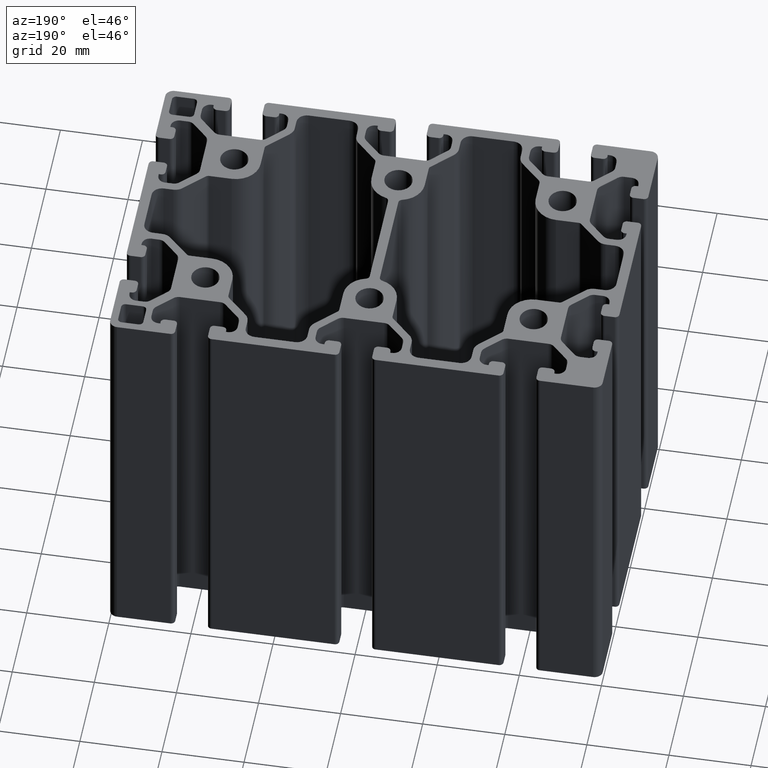
[diagram: clean part render]
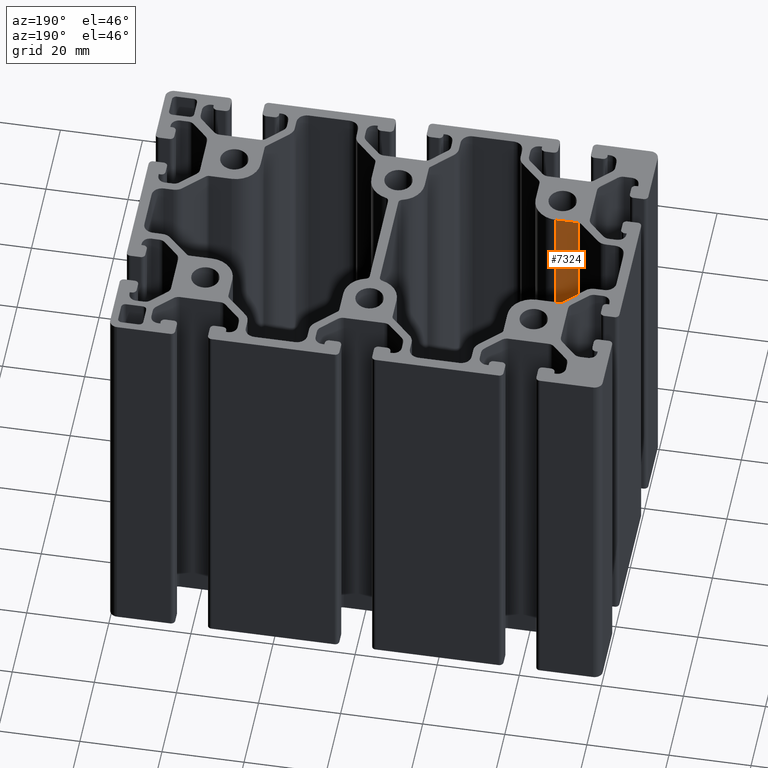
[diagram: same view with one face highlighted and labeled with its STEP entity id]
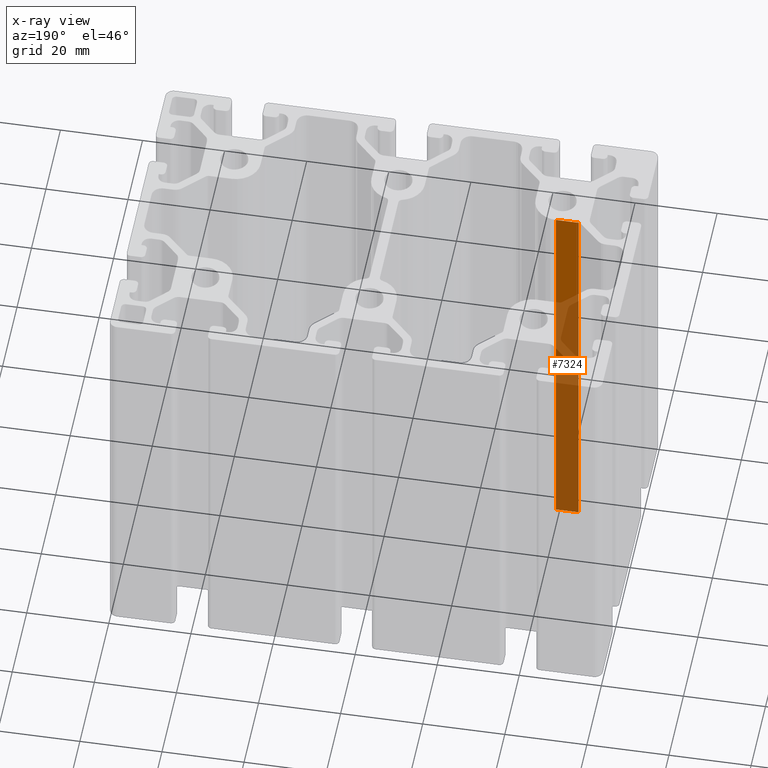
[diagram: x-ray of the same camera — body ghosted, the highlighted face saturated]
A machine part, auxiliary view. The second image highlights one B-rep face of the part: STEP entity #7324.
The next image is the same camera in x-ray: the body ghosted, the highlighted face saturated — about 73% of this face is hidden behind the body in this view.
In plain terms, the highlighted planar face has unit normal (-0, -1, 0).
Its self-contained STEP definition (entity closure, byte-faithful):
#47=PLANE('',#7724);
#252=FACE_OUTER_BOUND('',#636,.T.);
#636=EDGE_LOOP('',(#4897,#4898,#4899,#4900));
#1058=LINE('',#10816,#1826);
#1059=LINE('',#10819,#1827);
#1060=LINE('',#10821,#1828);
#1061=LINE('',#10822,#1829);
#1826=VECTOR('',#8534,100.);
#1827=VECTOR('',#8537,5.52512626584709);
#1828=VECTOR('',#8538,5.52512626584709);
#1829=VECTOR('',#8539,100.);
#2967=VERTEX_POINT('',#10812);
#2968=VERTEX_POINT('',#10814);
#2969=VERTEX_POINT('',#10818);
#2970=VERTEX_POINT('',#10820);
#3744=EDGE_CURVE('',#2968,#2967,#1058,.T.);
#3745=EDGE_CURVE('',#2967,#2969,#1059,.T.);
#3746=EDGE_CURVE('',#2970,#2968,#1060,.T.);
#3747=EDGE_CURVE('',#2970,#2969,#1061,.T.);
#4897=ORIENTED_EDGE('',*,*,#3745,.F.);
#4898=ORIENTED_EDGE('',*,*,#3744,.F.);
#4899=ORIENTED_EDGE('',*,*,#3746,.F.);
#4900=ORIENTED_EDGE('',*,*,#3747,.T.);
#7324=ADVANCED_FACE('',(#252),#47,.F.);
#7724=AXIS2_PLACEMENT_3D('',#10817,#8535,#8536);
#8534=DIRECTION('',(0.,0.,1.));
#8535=DIRECTION('center_axis',(-4.01881503229299E-16,-1.,0.));
#8536=DIRECTION('ref_axis',(0.,0.,-1.));
#8537=DIRECTION('',(-1.,4.018815032293E-16,0.));
#8538=DIRECTION('',(1.,-4.018815032293E-16,0.));
#8539=DIRECTION('',(0.,0.,1.));
#10812=CARTESIAN_POINT('',(-39.5,-13.5,100.));
#10814=CARTESIAN_POINT('',(-39.5,-13.5,0.));
#10816=CARTESIAN_POINT('',(-39.5,-13.5,0.));
#10817=CARTESIAN_POINT('Origin',(-39.5,-13.5,0.));
#10818=CARTESIAN_POINT('',(-45.0251262658471,-13.5,100.));
#10819=CARTESIAN_POINT('',(-19.75,-13.5,100.));
#10820=CARTESIAN_POINT('',(-45.0251262658471,-13.5,0.));
#10821=CARTESIAN_POINT('',(-19.75,-13.5,0.));
#10822=CARTESIAN_POINT('',(-45.0251262658471,-13.5,0.));